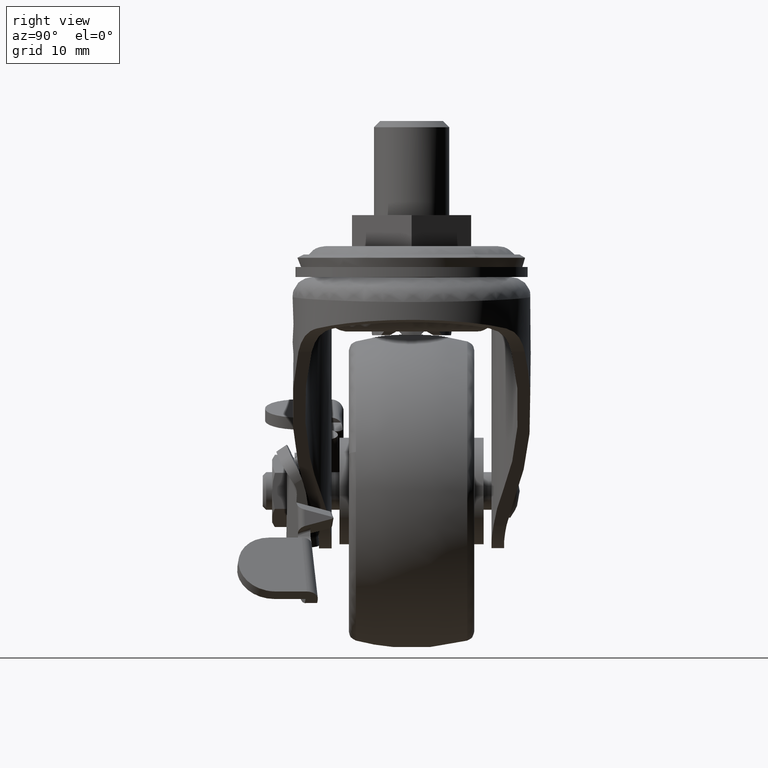
[diagram: clean part render]
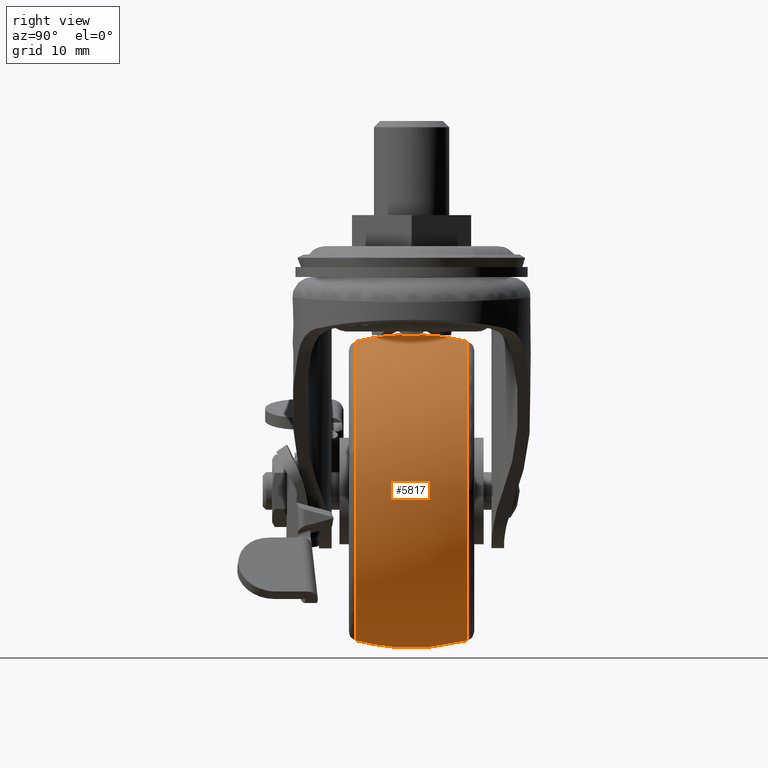
[diagram: same view with one face highlighted and labeled with its STEP entity id]
A machine part, right view. The second image highlights one B-rep face of the part: STEP entity #5817.
In plain terms, the highlighted face is a freeform B-spline surface patch.
Its self-contained STEP definition (entity closure, byte-faithful):
#5110=CARTESIAN_POINT('',(4.028807890449260,-8.880597016130544,-33.778225137958771));
#5111=VERTEX_POINT('',#5110);
#5123=CARTESIAN_POINT('',(-19.0,-8.880597014925399,-16.145883411302300));
#5124=VERTEX_POINT('',#5123);
#5125=CARTESIAN_POINT('',(-19.0,-8.880597014925399,-16.145883411302300));
#5126=CARTESIAN_POINT('',(-17.335646199481499,-8.880597014925337,-16.145611648381859));
#5127=CARTESIAN_POINT('',(-14.940763279498441,-8.880597014942692,-16.397586448388790));
#5128=CARTESIAN_POINT('',(-11.598599755109429,-8.880597015002133,-17.269782795665421));
#5129=CARTESIAN_POINT('',(-9.092878173999665,-8.880597015068185,-18.234616360677489));
#5130=CARTESIAN_POINT('',(-6.761231020543398,-8.880597015153169,-19.478602820117501));
#5131=CARTESIAN_POINT('',(-4.599907946598943,-8.880597015252105,-20.924578508238898));
#5132=CARTESIAN_POINT('',(-2.665935429232812,-8.880597015362469,-22.543141839569589));
#5133=CARTESIAN_POINT('',(-0.539773969490700,-8.880597015516015,-24.784146781759759));
#5134=CARTESIAN_POINT('',(1.184904666037079,-8.880597015677743,-27.155075359176809));
#5135=CARTESIAN_POINT('',(2.868608652358302,-8.880597015890444,-30.265296233575839));
#5136=CARTESIAN_POINT('',(3.658342236803219,-8.880597016036758,-32.406599367937943));
#5137=CARTESIAN_POINT('',(4.028807890449260,-8.880597016130544,-33.778225137958771));
#5138=B_SPLINE_CURVE_WITH_KNOTS('',3,(#5125,#5126,#5127,#5128,#5129,#5130,#5131,#5132,#5133,#5134,#5135,#5136,#5137),.UNSPECIFIED.,.F.,.U.,(4,1,1,1,1,1,1,1,1,1,4),(0.000000032797146,4.992981337749477,7.185022115606778,10.351314575131420,13.030470350475349,15.100757481800450,18.145220921123009,20.580824193896060,24.356010150077282,26.913392705096019,31.175691650080498),.UNSPECIFIED.);
#5139=EDGE_CURVE('',#5124,#5111,#5138,.T.);
#5141=CARTESIAN_POINT('',(-42.695067302990942,-8.880597014950178,-42.754853804843400));
#5142=VERTEX_POINT('',#5141);
#5143=CARTESIAN_POINT('',(-42.695067302990942,-8.880597014950178,-42.754853804843400));
#5144=CARTESIAN_POINT('',(-42.870657568839214,-8.880597014947718,-41.245871420067530));
#5145=CARTESIAN_POINT('',(-42.916052974357399,-8.880597014944264,-38.983537171587827));
#5146=CARTESIAN_POINT('',(-42.509458707205390,-8.880597014939312,-35.652066528291293));
#5147=CARTESIAN_POINT('',(-41.881383711224629,-8.880597014935951,-33.048758164248923));
#5148=CARTESIAN_POINT('',(-40.868751915385729,-8.880597014932176,-30.347147460330181));
#5149=CARTESIAN_POINT('',(-39.560092659744818,-8.880597014929354,-27.774655142586489));
#5150=CARTESIAN_POINT('',(-37.990798448210313,-8.880597014926785,-25.476289981082711));
#5151=CARTESIAN_POINT('',(-36.101237334215192,-8.880597014924724,-23.297246282898659));
#5152=CARTESIAN_POINT('',(-33.746066404851753,-8.880597014923012,-21.127339771152290));
#5153=CARTESIAN_POINT('',(-30.904807320207141,-8.880597014921992,-19.226512923245259));
#5154=CARTESIAN_POINT('',(-27.963016669039661,-8.880597014921909,-17.836700098067080));
#5155=CARTESIAN_POINT('',(-25.527642287480660,-8.880597014922254,-17.013115444902621));
#5156=CARTESIAN_POINT('',(-22.562095264762551,-8.880597014923351,-16.337487173493908));
#5157=CARTESIAN_POINT('',(-20.414389581129711,-8.880597014924232,-16.145744141240890));
#5158=CARTESIAN_POINT('',(-19.0,-8.880597014925399,-16.145883411302300));
#5159=B_SPLINE_CURVE_WITH_KNOTS('',3,(#5143,#5144,#5145,#5146,#5147,#5148,#5149,#5150,#5151,#5152,#5153,#5154,#5155,#5156,#5157,#5158),.UNSPECIFIED.,.F.,.U.,(4,1,1,1,1,1,1,1,1,1,1,1,1,4),(0.000000044745974,4.557445063962170,6.757600667004013,10.057832446037200,12.572297365124570,15.401060162672019,18.701312318288309,20.901424759363049,24.044502900998960,28.287646580692169,31.116421919205258,33.788034365500387,35.988186771649403,40.231327283507241),.UNSPECIFIED.);
#5160=EDGE_CURVE('',#5142,#5124,#5159,.T.);
#5162=CARTESIAN_POINT('',(-19.0,-8.880597014985064,-63.855114588682241));
#5163=VERTEX_POINT('',#5162);
#5181=CARTESIAN_POINT('',(-11.470840483115751,-8.880597015026487,-62.635746775374727));
#5182=VERTEX_POINT('',#5181);
#5183=CARTESIAN_POINT('',(-11.470840483115751,-8.880597015026487,-62.635746775374727));
#5184=CARTESIAN_POINT('',(-12.985072032273600,-8.880597015005387,-63.139678776487472));
#5185=CARTESIAN_POINT('',(-15.489099252043880,-8.880597014983870,-63.701226161536759));
#5186=CARTESIAN_POINT('',(-18.042486081366249,-8.880597014982675,-63.855127091075822));
#5187=CARTESIAN_POINT('',(-19.0,-8.880597014985064,-63.855114588682241));
#5188=B_SPLINE_CURVE_WITH_KNOTS('',3,(#5183,#5184,#5185,#5186,#5187),.UNSPECIFIED.,.F.,.U.,(4,1,4),(1.932261E-009,4.787586146012865,7.660137869393681),.UNSPECIFIED.);
#5189=EDGE_CURVE('',#5182,#5163,#5188,.T.);
#5240=CARTESIAN_POINT('',(4.028807890449260,-8.880597016130544,-33.778225137958771));
#5241=CARTESIAN_POINT('',(4.445978313887832,-8.880597015985421,-35.321280245305502));
#5242=CARTESIAN_POINT('',(4.799179848721785,-8.880597015799165,-37.465876174979762));
#5243=CARTESIAN_POINT('',(4.884173005315027,-8.880597015559404,-40.569511578296321));
#5244=CARTESIAN_POINT('',(4.722918147650191,-8.880597015389766,-42.965928768737101));
#5245=CARTESIAN_POINT('',(4.252897542864284,-8.880597015230402,-45.512706366227192));
#5246=CARTESIAN_POINT('',(3.469644956725645,-8.880597015083481,-48.176818008028363));
#5247=CARTESIAN_POINT('',(2.505765798564352,-8.880597014980390,-50.430108929586709));
#5248=CARTESIAN_POINT('',(1.195272050548563,-8.880597014894565,-52.769446880670408));
#5249=CARTESIAN_POINT('',(-0.419486603553096,-8.880597014831418,-55.088910252866327));
#5250=CARTESIAN_POINT('',(-2.670027090164373,-8.880597014804559,-57.504329553194601));
#5251=CARTESIAN_POINT('',(-5.169463856903962,-8.880597014826616,-59.508365279442813));
#5252=CARTESIAN_POINT('',(-8.011423871402513,-8.880597014890336,-61.269062701788897));
#5253=CARTESIAN_POINT('',(-10.132503664835831,-8.880597014967494,-62.190733271621589));
#5254=CARTESIAN_POINT('',(-11.470840483115751,-8.880597015026487,-62.635746775374727));
#5255=B_SPLINE_CURVE_WITH_KNOTS('',3,(#5240,#5241,#5242,#5243,#5244,#5245,#5246,#5247,#5248,#5249,#5250,#5251,#5252,#5253,#5254),.UNSPECIFIED.,.F.,.U.,(4,1,1,1,1,1,1,1,1,1,1,1,4),(0.000000044978350,4.795292897624339,6.487741171238866,9.308514972610769,11.988242983485501,14.244869490458621,17.629782912373258,19.322184868977558,22.283996597007899,26.092041577105320,29.194885567380549,31.874628490422879,36.105750044599517),.UNSPECIFIED.);
#5256=EDGE_CURVE('',#5111,#5182,#5255,.T.);
#5291=CARTESIAN_POINT('',(-9.399585676496500,8.880596973648643,-18.163037387546119));
#5292=VERTEX_POINT('',#5291);
#5293=CARTESIAN_POINT('',(-19.0,8.880595943836209,-63.855114869661328));
#5294=VERTEX_POINT('',#5293);
#5295=CARTESIAN_POINT('',(-9.399585676496500,8.880596973648643,-18.163037387546119));
#5296=CARTESIAN_POINT('',(-7.809635476322828,8.880596957751047,-18.861671599349410));
#5297=CARTESIAN_POINT('',(-5.521776827362623,8.880596927756567,-20.182569433891910));
#5298=CARTESIAN_POINT('',(-2.606287041957870,8.880596873384949,-22.581745126863989));
#5299=CARTESIAN_POINT('',(-0.250380396684435,8.880596816642733,-25.088190306548771));
#5300=CARTESIAN_POINT('',(1.821947917141141,8.880596747339435,-28.152613267791072));
#5301=CARTESIAN_POINT('',(3.288687392149643,8.880596675969965,-31.310963767582109));
#5302=CARTESIAN_POINT('',(4.216712937308743,8.880596609231837,-34.266088993942532));
#5303=CARTESIAN_POINT('',(4.677049986414517,8.880596552694591,-36.770780967927053));
#5304=CARTESIAN_POINT('',(4.891944001686369,8.880596492637073,-39.432510953820000));
#5305=CARTESIAN_POINT('',(4.832551231013199,8.880596435203650,-41.978901206793878));
#5306=CARTESIAN_POINT('',(4.370192698191150,8.880596364238215,-45.126899070938222));
#5307=CARTESIAN_POINT('',(3.516074244350529,8.880596297062875,-48.108246448912588));
#5308=CARTESIAN_POINT('',(2.122264451233020,8.880596226309709,-51.250367568562609));
#5309=CARTESIAN_POINT('',(0.418109329379855,8.880596164599412,-53.992788376780588));
#5310=CARTESIAN_POINT('',(-1.816532793909806,8.880596104607049,-56.661091674248411));
#5311=CARTESIAN_POINT('',(-4.059304938673349,8.880596059306669,-58.678089088848843));
#5312=CARTESIAN_POINT('',(-6.705953329861412,8.880596018054064,-60.517197237328674));
#5313=CARTESIAN_POINT('',(-9.115044573737043,8.880595989830349,-61.777772727917963));
#5314=CARTESIAN_POINT('',(-11.774263382442861,8.880595967515841,-62.777338282078290));
#5315=CARTESIAN_POINT('',(-14.891434491412300,8.880595949205935,-63.601161938761862));
#5316=CARTESIAN_POINT('',(-17.390410678400531,8.880595943689807,-63.855368889129302));
#5317=CARTESIAN_POINT('',(-19.0,8.880595943836209,-63.855114869661328));
#5318=B_SPLINE_CURVE_WITH_KNOTS('',3,(#5295,#5296,#5297,#5298,#5299,#5300,#5301,#5302,#5303,#5304,#5305,#5306,#5307,#5308,#5309,#5310,#5311,#5312,#5313,#5314,#5315,#5316,#5317),.UNSPECIFIED.,.F.,.U.,(4,1,1,1,1,1,1,1,1,1,1,1,1,1,1,1,1,1,1,1,4),(0.000000116405644,5.209918294650393,7.878472842203259,11.309434433944940,15.502828990057971,18.933786794082739,21.729383639194062,24.779146117119300,26.558150772893949,29.734980983024059,32.403500116928633,36.088519658313437,39.011175742630947,42.696303951012837,45.746041564481423,49.431149886484469,51.718451034783641,55.403574411709428,57.563807617284382,60.232337202989243,65.061045536598527),.UNSPECIFIED.);
#5319=EDGE_CURVE('',#5292,#5294,#5318,.T.);
#5321=CARTESIAN_POINT('',(-42.695066061914183,8.880612571269642,-42.754829139860107));
#5322=VERTEX_POINT('',#5321);
#5339=CARTESIAN_POINT('',(-42.177898359578812,8.880609661254884,-34.358907099020037));
#5340=VERTEX_POINT('',#5339);
#5341=CARTESIAN_POINT('',(-42.695066061914183,8.880612571269642,-42.754829139860107));
#5342=CARTESIAN_POINT('',(-42.852815164510780,8.880612177625009,-41.398665017638180));
#5343=CARTESIAN_POINT('',(-42.937108473840460,8.880611279353236,-38.570852199591897));
#5344=CARTESIAN_POINT('',(-42.521767584721339,8.880610232033902,-35.771028656669557));
#5345=CARTESIAN_POINT('',(-42.177898359578812,8.880609661254884,-34.358907099020037));
#5346=B_SPLINE_CURVE_WITH_KNOTS('',3,(#5341,#5342,#5343,#5344,#5345),.UNSPECIFIED.,.F.,.U.,(4,1,4),(2.791110E-009,4.095907249366570,8.456050006462569),.UNSPECIFIED.);
#5347=EDGE_CURVE('',#5322,#5340,#5346,.T.);
#5445=CARTESIAN_POINT('',(-19.0,8.880597014925399,-16.145883411302300));
#5446=VERTEX_POINT('',#5445);
#5447=CARTESIAN_POINT('',(-19.0,8.880597014925399,-16.145883411302300));
#5448=CARTESIAN_POINT('',(-17.816392204450128,8.880597014926739,-16.145818106845130));
#5449=CARTESIAN_POINT('',(-15.912358878604040,8.880597012019200,-16.287906305793140));
#5450=CARTESIAN_POINT('',(-12.677401225964079,8.880596999003423,-16.923974695719391));
#5451=CARTESIAN_POINT('',(-10.671503544054300,8.880596985093613,-17.603733028527639));
#5452=CARTESIAN_POINT('',(-9.399585676496500,8.880596973648643,-18.163037387546119));
#5453=B_SPLINE_CURVE_WITH_KNOTS('',3,(#5447,#5448,#5449,#5450,#5451,#5452),.UNSPECIFIED.,.F.,.U.,(4,1,1,4),(3.413128E-009,3.550817476491094,5.712181212087484,9.880533913854846),.UNSPECIFIED.);
#5454=EDGE_CURVE('',#5446,#5292,#5453,.T.);
#5485=CARTESIAN_POINT('',(-42.177898359578812,8.880609661254884,-34.358907099020037));
#5486=CARTESIAN_POINT('',(-41.864883880074757,8.880609152475023,-33.072469275014647));
#5487=CARTESIAN_POINT('',(-41.076368405399371,8.880608155928261,-30.709516615725988));
#5488=CARTESIAN_POINT('',(-39.511243381748230,8.880606720374360,-27.689292683959799));
#5489=CARTESIAN_POINT('',(-37.664258765583767,8.880605322323413,-25.036453925951239));
#5490=CARTESIAN_POINT('',(-35.486596818749618,8.880603912577660,-22.643186885694838));
#5491=CARTESIAN_POINT('',(-32.888269496843918,8.880602466004531,-20.512556003189228));
#5492=CARTESIAN_POINT('',(-29.811129185416188,8.880600961088375,-18.630305779794920));
#5493=CARTESIAN_POINT('',(-26.821359299952221,8.880599687573270,-17.382302539880691));
#5494=CARTESIAN_POINT('',(-23.095925132273841,8.880598287076992,-16.400964773498320));
#5495=CARTESIAN_POINT('',(-20.654980681192320,8.880597495383768,-16.145636364404190));
#5496=CARTESIAN_POINT('',(-19.0,8.880597014925399,-16.145883411302300));
#5497=B_SPLINE_CURVE_WITH_KNOTS('',3,(#5485,#5486,#5487,#5488,#5489,#5490,#5491,#5492,#5493,#5494,#5495,#5496),.UNSPECIFIED.,.F.,.U.,(4,1,1,1,1,1,1,1,1,4),(0.000000035843048,3.971898237921749,7.447316354755014,10.178003623730669,13.653440561912470,17.128805997800882,20.231880274425151,24.452028967427079,26.810350849326820,31.775224061533539),.UNSPECIFIED.);
#5498=EDGE_CURVE('',#5340,#5446,#5497,.T.);
#5734=CARTESIAN_POINT('',(-42.449534497001238,9.774491602244931,-42.726312068891062));
#5735=CARTESIAN_POINT('',(-43.832791040827111,4.986445474561416,-42.887104120659558));
#5736=CARTESIAN_POINT('',(-43.832791040827097,-5.510820E-015,-42.887104120659572));
#5737=CARTESIAN_POINT('',(-43.832791040827104,-4.986438637910332,-42.887104120659579));
#5738=CARTESIAN_POINT('',(-42.449538214560540,-9.774478734163315,-42.726312501026349));
#5739=CARTESIAN_POINT('',(-42.607429445252777,9.774491602244931,-41.367978631362583));
#5740=CARTESIAN_POINT('',(-44.0,4.986445474561417,-41.448644418091632));
#5741=CARTESIAN_POINT('',(-44.0,-5.510820E-015,-41.448644418091632));
#5742=CARTESIAN_POINT('',(-43.999999999999993,-4.986438637910332,-41.448644418091632));
#5743=CARTESIAN_POINT('',(-42.607433187843860,-9.774478734163317,-41.367978848155225));
#5744=CARTESIAN_POINT('',(-42.607429445252777,9.774491602244929,-40.000499000000097));
#5745=CARTESIAN_POINT('',(-44.0,4.986445474561417,-40.000499000000083));
#5746=CARTESIAN_POINT('',(-44.0,-5.510820E-015,-40.000499000000097));
#5747=CARTESIAN_POINT('',(-43.999999999999993,-4.986438637910332,-40.000499000000097));
#5748=CARTESIAN_POINT('',(-42.607433187843860,-9.774478734163317,-40.000499000000097));
#5749=CARTESIAN_POINT('',(-42.607429445252784,9.774491602244931,-16.393069554747324));
#5750=CARTESIAN_POINT('',(-44.0,4.986445474561417,-15.000499000000101));
#5751=CARTESIAN_POINT('',(-44.000000000000014,-5.510820E-015,-15.000499000000106));
#5752=CARTESIAN_POINT('',(-44.0,-4.986438637910331,-15.000499000000103));
#5753=CARTESIAN_POINT('',(-42.607433187843874,-9.774478734163319,-16.393065812156241));
#5754=CARTESIAN_POINT('',(-19.000000000000004,9.774491602244929,-16.393069554747317));
#5755=CARTESIAN_POINT('',(-19.000000000000004,4.986445474561417,-15.000499000000094));
#5756=CARTESIAN_POINT('',(-19.0,-5.510820E-015,-15.000499000000101));
#5757=CARTESIAN_POINT('',(-19.000000000000007,-4.986438637910332,-15.000499000000101));
#5758=CARTESIAN_POINT('',(-19.0,-9.774478734163317,-16.393065812156237));
#5759=CARTESIAN_POINT('',(4.607429445252777,9.774491602244931,-16.393069554747324));
#5760=CARTESIAN_POINT('',(6.000000000000002,4.986445474561417,-15.000499000000101));
#5761=CARTESIAN_POINT('',(6.000000000000003,-5.510820E-015,-15.000499000000106));
#5762=CARTESIAN_POINT('',(6.000000000000001,-4.986438637910331,-15.000499000000103));
#5763=CARTESIAN_POINT('',(4.607433187843865,-9.774478734163319,-16.393065812156241));
#5764=CARTESIAN_POINT('',(4.607429445252776,9.774491602244929,-40.000499000000097));
#5765=CARTESIAN_POINT('',(6.000000000000002,4.986445474561417,-40.000499000000083));
#5766=CARTESIAN_POINT('',(6.000000000000002,-5.510820E-015,-40.000499000000097));
#5767=CARTESIAN_POINT('',(6.000000000000003,-4.986438637910332,-40.000499000000097));
#5768=CARTESIAN_POINT('',(4.607433187843867,-9.774478734163317,-40.000499000000097));
#5769=CARTESIAN_POINT('',(4.607429445252777,9.774491602244931,-63.607928445252874));
#5770=CARTESIAN_POINT('',(6.000000000000002,4.986445474561417,-65.000499000000119));
#5771=CARTESIAN_POINT('',(6.000000000000003,-5.510820E-015,-65.000499000000104));
#5772=CARTESIAN_POINT('',(6.000000000000001,-4.986438637910331,-65.000499000000119));
#5773=CARTESIAN_POINT('',(4.607433187843865,-9.774478734163319,-63.607932187843986));
#5774=CARTESIAN_POINT('',(-19.000000000000004,9.774491602244929,-63.607928445252881));
#5775=CARTESIAN_POINT('',(-19.000000000000004,4.986445474561417,-65.000499000000104));
#5776=CARTESIAN_POINT('',(-19.0,-5.510820E-015,-65.000499000000104));
#5777=CARTESIAN_POINT('',(-19.000000000000007,-4.986438637910332,-65.000499000000104));
#5778=CARTESIAN_POINT('',(-19.0,-9.774478734163317,-63.607932187843971));
#5786=(BOUNDED_SURFACE()B_SPLINE_SURFACE(2,2,((#5734,#5739,#5744,#5749,#5754,#5759,#5764,#5769,#5774),(#5735,#5740,#5745,#5750,#5755,#5760,#5765,#5770,#5775),(#5736,#5741,#5746,#5751,#5756,#5761,#5766,#5771,#5776),(#5737,#5742,#5747,#5752,#5757,#5762,#5767,#5772,#5777),(#5738,#5743,#5748,#5753,#5758,#5763,#5768,#5773,#5778)),.UNSPECIFIED.,.F.,.F.,.U.)B_SPLINE_SURFACE_WITH_KNOTS((3,2,3),(3,2,2,2,3),(0.0,10.236378382488081,20.472743363687972),(0.0,3.313707807691299,44.735064045000819,86.156420282310336,127.577776519619900),.UNSPECIFIED.)GEOMETRIC_REPRESENTATION_ITEM()RATIONAL_B_SPLINE_SURFACE(((0.890190271899314,0.908500809799948,0.930299068339280,0.657820779754232,0.930299068339280,0.657820779754232,0.930299068339280,0.657820779754232,0.930299068339280),(0.913709425086292,0.932503734108017,0.954877910625763,0.675200645808719,0.954877910625763,0.675200645808719,0.954877910625763,0.675200645808719,0.954877910625763),(0.956886126402807,0.976568547383107,1.0,0.707106781186548,1.0,0.707106781186548,1.0,0.707106781186548,1.0),(0.913709481612477,0.932503791796903,0.954877969698816,0.675200687579675,0.954877969698816,0.675200687579675,0.954877969698816,0.675200687579675,0.954877969698816),(0.890190333481079,0.908500872648403,0.930299132695699,0.657820825261093,0.930299132695699,0.657820825261093,0.930299132695699,0.657820825261093,0.930299132695699)))REPRESENTATION_ITEM('')SURFACE());
#5787=ORIENTED_EDGE('',*,*,#5160,.T.);
#5788=ORIENTED_EDGE('',*,*,#5139,.T.);
#5789=ORIENTED_EDGE('',*,*,#5256,.T.);
#5790=ORIENTED_EDGE('',*,*,#5189,.T.);
#5791=CARTESIAN_POINT('',(-19.0,8.880595943836209,-63.855114869661328));
#5792=CARTESIAN_POINT('',(-18.999999999999979,7.523584048864109,-64.211103788979585));
#5793=CARTESIAN_POINT('',(-19.000000000000071,4.307210363172723,-64.851123594626060));
#5794=CARTESIAN_POINT('',(-18.999999999999961,-0.470554109974134,-65.119585755797701));
#5795=CARTESIAN_POINT('',(-18.999999999999929,-5.045049542588506,-64.714989626129665));
#5796=CARTESIAN_POINT('',(-18.999999999999961,-7.704517846644791,-64.163633549547072));
#5797=CARTESIAN_POINT('',(-19.0,-8.880597014985064,-63.855114588682241));
#5798=B_SPLINE_CURVE_WITH_KNOTS('',3,(#5791,#5792,#5793,#5794,#5795,#5796,#5797),.UNSPECIFIED.,.F.,.U.,(4,1,1,1,4),(4.454265E-009,4.208793951124145,9.820509932215984,14.309902118905100,17.957523820409051),.UNSPECIFIED.);
#5799=EDGE_CURVE('',#5294,#5163,#5798,.T.);
#5800=ORIENTED_EDGE('',*,*,#5799,.F.);
#5801=ORIENTED_EDGE('',*,*,#5319,.F.);
#5802=ORIENTED_EDGE('',*,*,#5454,.F.);
#5803=ORIENTED_EDGE('',*,*,#5498,.F.);
#5804=ORIENTED_EDGE('',*,*,#5347,.F.);
#5805=CARTESIAN_POINT('',(-42.695066061914183,8.880612571269642,-42.754829139860107));
#5806=CARTESIAN_POINT('',(-43.202044904157027,6.935579034295234,-42.813763905474069));
#5807=CARTESIAN_POINT('',(-43.691852622557562,4.067509127166549,-42.870703944857283));
#5808=CARTESIAN_POINT('',(-43.901768216305577,-0.513875165220490,-42.895111214398433));
#5809=CARTESIAN_POINT('',(-43.648063043455643,-4.490992453589430,-42.865625585595950));
#5810=CARTESIAN_POINT('',(-43.048679157560002,-7.523584525174251,-42.795956373005033));
#5811=CARTESIAN_POINT('',(-42.695067302990942,-8.880597014950178,-42.754853804843400));
#5812=B_SPLINE_CURVE_WITH_KNOTS('',3,(#5805,#5806,#5807,#5808,#5809,#5810,#5811),.UNSPECIFIED.,.F.,.U.,(4,1,1,1,4),(4.455721E-009,6.032613704323353,8.698190590026156,13.748743034833760,17.957541010406580),.UNSPECIFIED.);
#5813=EDGE_CURVE('',#5322,#5142,#5812,.T.);
#5814=ORIENTED_EDGE('',*,*,#5813,.T.);
#5815=EDGE_LOOP('',(#5787,#5788,#5789,#5790,#5800,#5801,#5802,#5803,#5804,#5814));
#5816=FACE_OUTER_BOUND('',#5815,.T.);
#5817=ADVANCED_FACE('',(#5816),#5786,.T.);